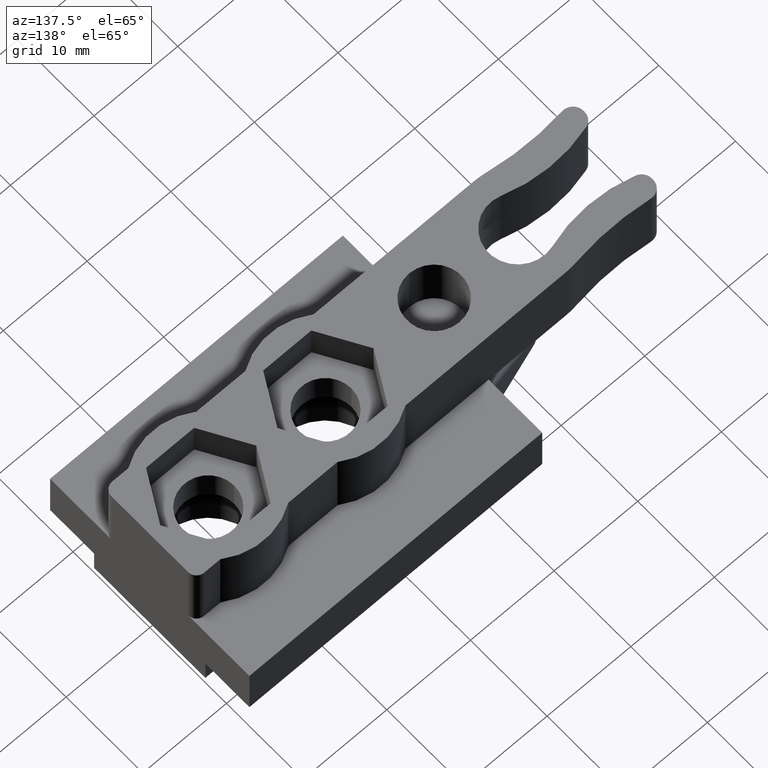
[diagram: clean part render]
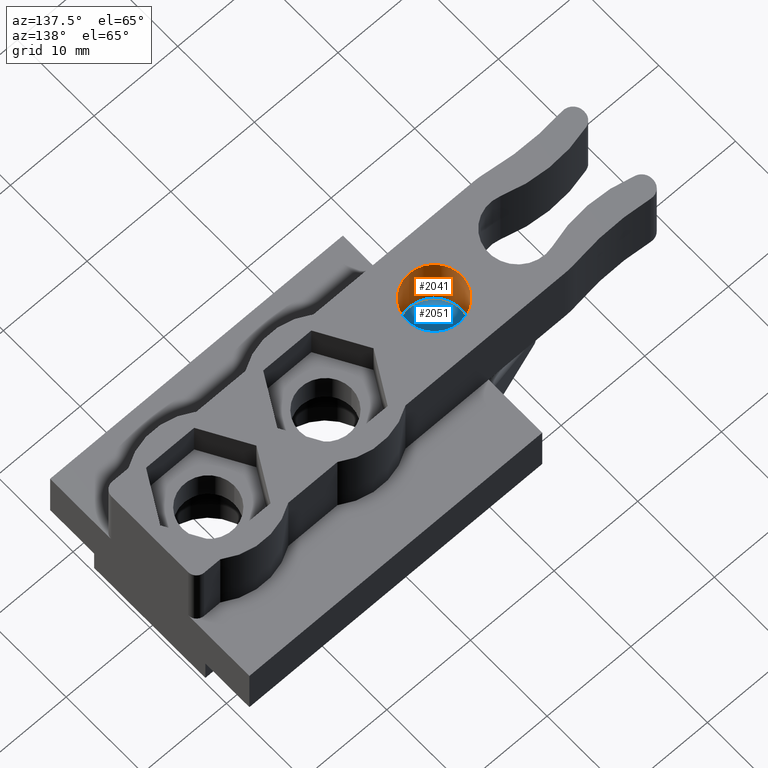
[diagram: same view with the hole feature highlighted: cylindrical wall and planar end face, labeled with their STEP entity ids]
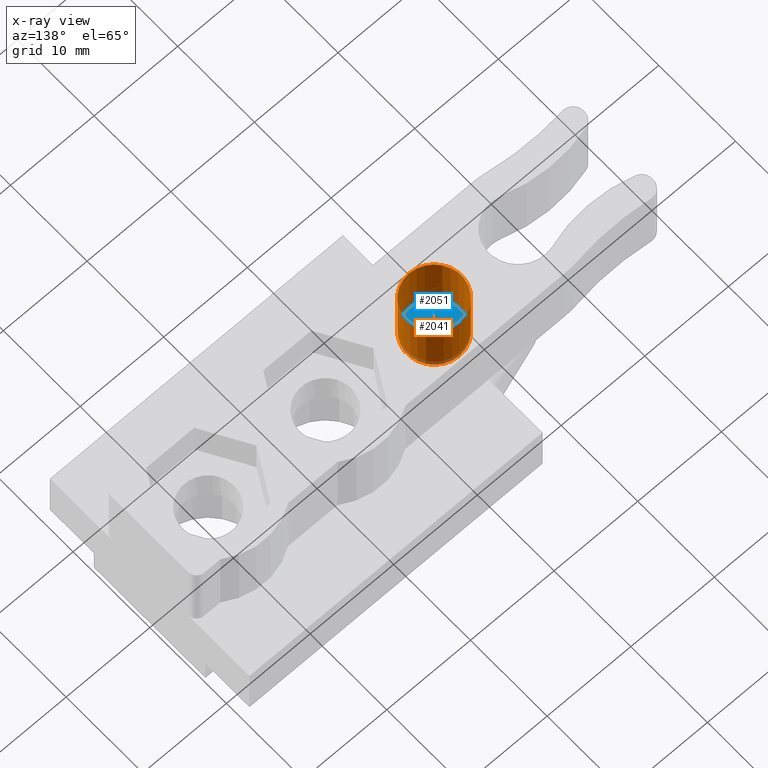
[diagram: x-ray of the same camera — body ghosted, the hole faces saturated]
A machine part, auxiliary view. The highlighted faces form one hole feature of diameter 6.5 mm: the cylindrical wall (entity #2041, orange) and its adjacent planar end face (entity #2051, blue) — they share a circular edge in the B-rep.
The next image is the same camera in x-ray (body ghosted, the hole faces saturated) — the bore reads through the body.
Wall:
#604=CARTESIAN_POINT('',(-34.0,-3.249999999999996,18.500000000000000));
#605=VERTEX_POINT('',#604);
#606=CARTESIAN_POINT('',(-34.0,3.250000000000004,18.500000000000000));
#607=VERTEX_POINT('',#606);
#608=CARTESIAN_POINT('',(-34.0,4.440892E-015,18.500000000000000));
#609=DIRECTION('',(0.0,0.0,-1.0));
#610=DIRECTION('',(0.0,-1.0,0.0));
#611=AXIS2_PLACEMENT_3D('',#608,#609,#610);
#612=CIRCLE('',#611,3.250000000000000);
#613=EDGE_CURVE('',#605,#607,#612,.T.);
#615=CARTESIAN_POINT('',(-34.0,4.440892E-015,18.500000000000000));
#616=DIRECTION('',(0.0,0.0,-1.0));
#617=DIRECTION('',(0.0,-1.0,0.0));
#618=AXIS2_PLACEMENT_3D('',#615,#616,#617);
#619=CIRCLE('',#618,3.250000000000000);
#620=EDGE_CURVE('',#607,#605,#619,.T.);
#2007=CARTESIAN_POINT('',(-34.0,4.440892E-015,11.499999989999999));
#2008=DIRECTION('',(0.0,0.0,1.0));
#2009=DIRECTION('',(0.0,-1.0,0.0));
#2010=AXIS2_PLACEMENT_3D('',#2007,#2008,#2009);
#2011=CYLINDRICAL_SURFACE('',#2010,3.250000000000000);
#2012=ORIENTED_EDGE('',*,*,#620,.F.);
#2013=ORIENTED_EDGE('',*,*,#613,.F.);
#2014=CARTESIAN_POINT('',(-34.0,-3.249999999999996,11.500000000000000));
#2015=VERTEX_POINT('',#2014);
#2016=CARTESIAN_POINT('',(-34.0,-3.249999999999996,18.500000000000000));
#2017=DIRECTION('',(0.0,0.0,-1.0));
#2018=VECTOR('',#2017,7.0);
#2019=LINE('',#2016,#2018);
#2020=EDGE_CURVE('',#605,#2015,#2019,.T.);
#2021=ORIENTED_EDGE('',*,*,#2020,.T.);
#2022=CARTESIAN_POINT('',(-34.0,3.250000000000004,11.500000000000000));
#2023=VERTEX_POINT('',#2022);
#2024=CARTESIAN_POINT('',(-34.0,4.440892E-015,11.500000000000000));
#2025=DIRECTION('',(0.0,0.0,1.0));
#2026=DIRECTION('',(0.0,-1.0,0.0));
#2027=AXIS2_PLACEMENT_3D('',#2024,#2025,#2026);
#2028=CIRCLE('',#2027,3.250000000000000);
#2029=EDGE_CURVE('',#2023,#2015,#2028,.T.);
#2030=ORIENTED_EDGE('',*,*,#2029,.F.);
#2031=CARTESIAN_POINT('',(-34.0,4.440892E-015,11.500000000000000));
#2032=DIRECTION('',(0.0,0.0,1.0));
#2033=DIRECTION('',(0.0,-1.0,0.0));
#2034=AXIS2_PLACEMENT_3D('',#2031,#2032,#2033);
#2035=CIRCLE('',#2034,3.250000000000000);
#2036=EDGE_CURVE('',#2015,#2023,#2035,.T.);
#2037=ORIENTED_EDGE('',*,*,#2036,.F.);
#2038=ORIENTED_EDGE('',*,*,#2020,.F.);
#2039=EDGE_LOOP('',(#2012,#2013,#2021,#2030,#2037,#2038));
#2040=FACE_OUTER_BOUND('',#2039,.T.);
#2041=ADVANCED_FACE('',(#2040),#2011,.F.);
End face:
#2014=CARTESIAN_POINT('',(-34.0,-3.249999999999996,11.500000000000000));
#2015=VERTEX_POINT('',#2014);
#2022=CARTESIAN_POINT('',(-34.0,3.250000000000004,11.500000000000000));
#2023=VERTEX_POINT('',#2022);
#2024=CARTESIAN_POINT('',(-34.0,4.440892E-015,11.500000000000000));
#2025=DIRECTION('',(0.0,0.0,1.0));
#2026=DIRECTION('',(0.0,-1.0,0.0));
#2027=AXIS2_PLACEMENT_3D('',#2024,#2025,#2026);
#2028=CIRCLE('',#2027,3.250000000000000);
#2029=EDGE_CURVE('',#2023,#2015,#2028,.T.);
#2031=CARTESIAN_POINT('',(-34.0,4.440892E-015,11.500000000000000));
#2032=DIRECTION('',(0.0,0.0,1.0));
#2033=DIRECTION('',(0.0,-1.0,0.0));
#2034=AXIS2_PLACEMENT_3D('',#2031,#2032,#2033);
#2035=CIRCLE('',#2034,3.250000000000000);
#2036=EDGE_CURVE('',#2015,#2023,#2035,.T.);
#2042=CARTESIAN_POINT('',(-30.424999999999997,-3.574999999999996,11.500000000000000));
#2043=DIRECTION('',(0.0,0.0,-1.0));
#2044=DIRECTION('',(-1.0,0.0,0.0));
#2045=AXIS2_PLACEMENT_3D('',#2042,#2043,#2044);
#2046=PLANE('',#2045);
#2047=ORIENTED_EDGE('',*,*,#2036,.T.);
#2048=ORIENTED_EDGE('',*,*,#2029,.T.);
#2049=EDGE_LOOP('',(#2047,#2048));
#2050=FACE_OUTER_BOUND('',#2049,.T.);
#2051=ADVANCED_FACE('',(#2050),#2046,.F.);